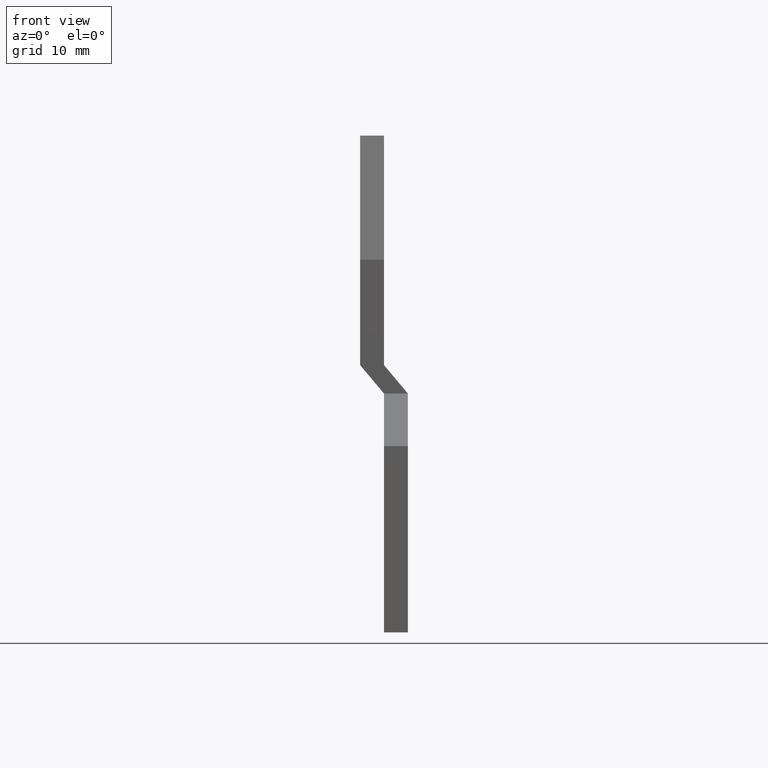
[diagram: clean part render]
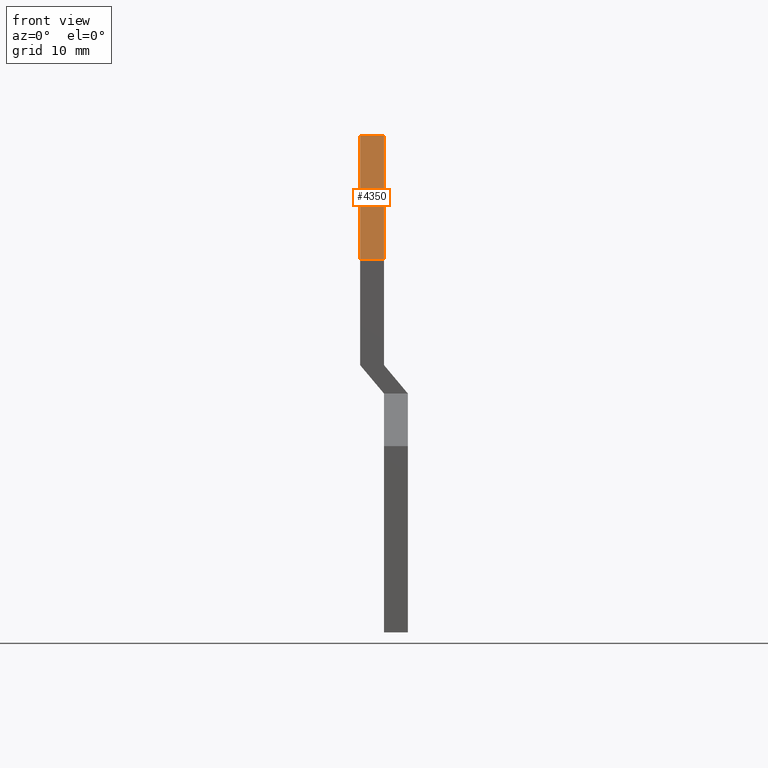
[diagram: same view with one face highlighted and labeled with its STEP entity id]
A machine part, front view. The second image highlights one B-rep face of the part: STEP entity #4350.
In plain terms, the highlighted planar face has unit normal (0, -0.9397, 0.342).
Its self-contained STEP definition (entity closure, byte-faithful):
#100=CARTESIAN_POINT('',(33.9299249545394,58.630769,-2.5));
#110=VERTEX_POINT('',#100);
#160=CARTESIAN_POINT('',(33.9299249545394,58.630769,0.));
#170=DIRECTION('',(0.,0.,-1.));
#180=VECTOR('',#170,1.);
#190=LINE('',#160,#180);
#200=CARTESIAN_POINT('',(33.9299249545394,58.630769,8.88178419700125E-16
));
#210=VERTEX_POINT('',#200);
#220=EDGE_CURVE('',#210,#110,#190,.T.);
#2690=CARTESIAN_POINT('',(55.2697796826765,0.,8.88178419700125E-16));
#2700=DIRECTION('',(-0.342020143325662,0.939692620785911,0.));
#2710=VECTOR('',#2700,1.);
#2720=LINE('',#2690,#2710);
#2730=CARTESIAN_POINT('',(38.6615379999999,45.630769,
8.88178419700125E-16));
#2740=VERTEX_POINT('',#2730);
#2750=EDGE_CURVE('',#2740,#210,#2720,.T.);
#3950=CARTESIAN_POINT('',(38.6615379999999,45.630769,0.));
#3960=DIRECTION('',(0.,0.,-1.));
#3970=VECTOR('',#3960,1.);
#3980=LINE('',#3950,#3970);
#3990=CARTESIAN_POINT('',(38.6615379999999,45.630769,-2.5));
#4000=VERTEX_POINT('',#3990);
#4010=EDGE_CURVE('',#2740,#4000,#3980,.T.);
#4190=CARTESIAN_POINT('',(34.1694100371156,57.9727891433257,-2.5));
#4200=DIRECTION('',(0.939692620785911,0.342020143325662,-0.));
#4210=DIRECTION('',(-0.342020143325662,0.939692620785911,0.));
#4220=AXIS2_PLACEMENT_3D('',#4190,#4200,#4210);
#4230=PLANE('',#4220);
#4240=CARTESIAN_POINT('',(55.2697796826765,0.,-2.5));
#4250=DIRECTION('',(-0.342020143325662,0.939692620785911,0.));
#4260=VECTOR('',#4250,1.);
#4270=LINE('',#4240,#4260);
#4280=EDGE_CURVE('',#4000,#110,#4270,.T.);
#4290=ORIENTED_EDGE('',*,*,#4280,.T.);
#4300=ORIENTED_EDGE('',*,*,#4010,.T.);
#4310=ORIENTED_EDGE('',*,*,#2750,.F.);
#4320=ORIENTED_EDGE('',*,*,#220,.F.);
#4330=EDGE_LOOP('',(#4320,#4310,#4300,#4290));
#4340=FACE_OUTER_BOUND('',#4330,.T.);
#4350=ADVANCED_FACE('',(#4340),#4230,.T.);